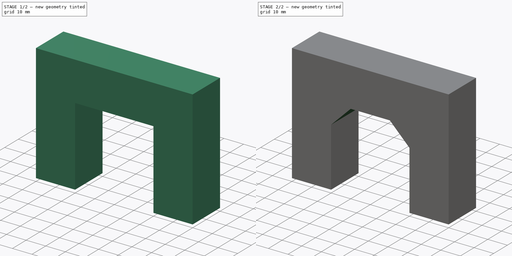
[diagram: build sequence overview — one tinted view per stage of 2, left to right]
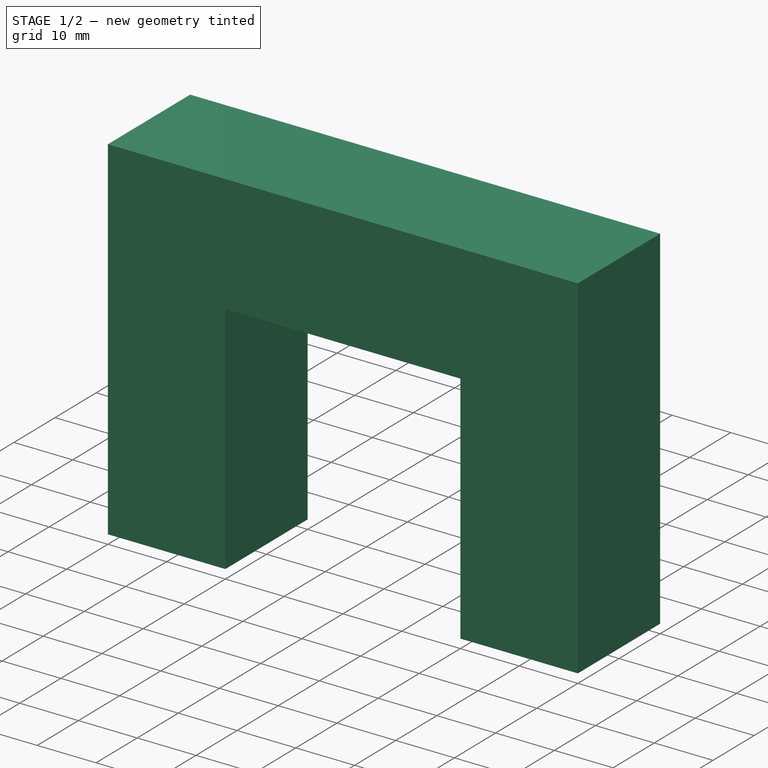
[diagram: stage 1 of 2 — iso view after this stage's code; geometry added in this stage tinted green]
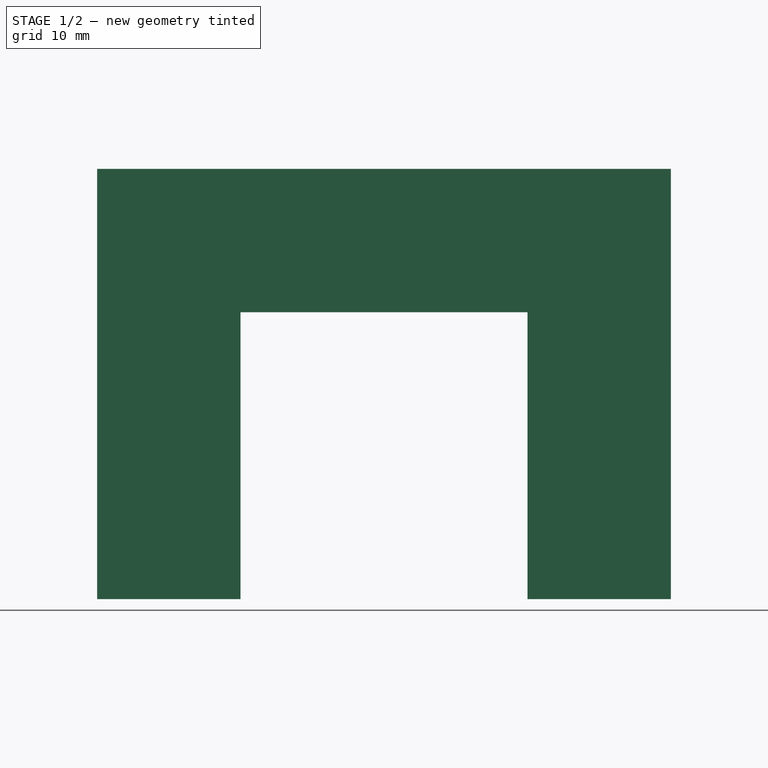
[diagram: stage 1 of 2 — front view after this stage's code; geometry added in this stage tinted green]
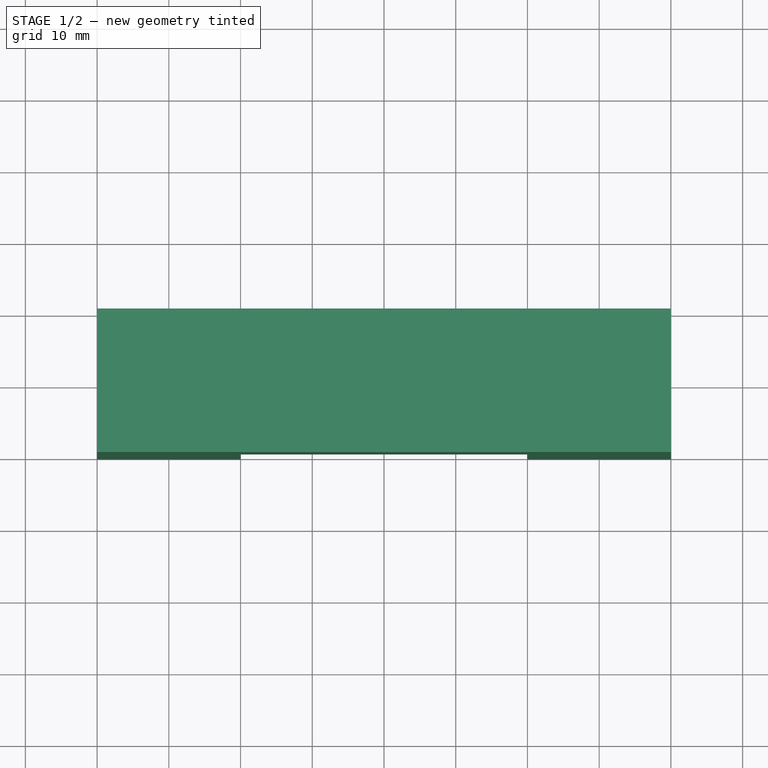
[diagram: stage 1 of 2 — top view after this stage's code; geometry added in this stage tinted green]
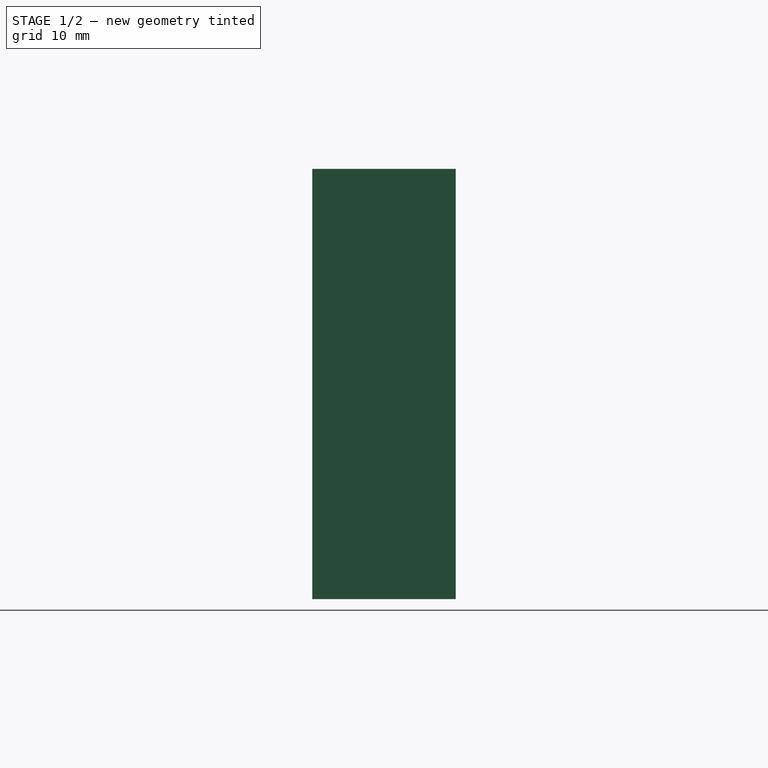
[diagram: stage 1 of 2 — right view after this stage's code; geometry added in this stage tinted green]
FCSTD DOCUMENT  (FreeCAD 0.17R10760 (Git))
Label: bridge_with_chamfers
License: All rights reserved
LicenseURL: http://en.wikipedia.org/wiki/All_rights_reserved
objects: Sketcher::SketchObject×1, PartDesign::Pad×1, PartDesign::Chamfer×1, PartDesign::Body×1, TechDraw::DrawSVGTemplate×1, TechDraw::DrawViewPart×1, TechDraw::DrawProjGroupItem×1, TechDraw::DrawProjGroup×1, TechDraw::DrawPage×1
note: 5 computed .brp shape members not serialized (recipe doc carries the construction recipe); baked Part::Feature solids carry a one-line shape summary decoded from their .brp

FEATURE [Sketcher::SketchObject] Sketch
  MapMode = 5
  Placement = pos=(0,0,0) rot=(1,0,0;1.5708rad)
  Support = -> [XZ_Plane]
  sketch-geometry (8):
    g0: LineSegment StartX=-40 StartY=0 StartZ=0 EndX=-20 EndY=0 EndZ=0
    g1: LineSegment StartX=-20 StartY=0 StartZ=0 EndX=-20 EndY=40 EndZ=0
    g2: LineSegment StartX=-20 StartY=40 StartZ=0 EndX=20 EndY=40 EndZ=0
    g3: LineSegment StartX=20 StartY=40 StartZ=0 EndX=20 EndY=0 EndZ=0
    g4: LineSegment StartX=20 StartY=0 StartZ=0 EndX=40 EndY=0 EndZ=0
    g5: LineSegment StartX=40 StartY=0 StartZ=0 EndX=40 EndY=60 EndZ=0
    g6: LineSegment StartX=40 StartY=60 StartZ=0 EndX=-40 EndY=60 EndZ=0
    g7: LineSegment StartX=-40 StartY=60 StartZ=0 EndX=-40 EndY=0 EndZ=0
  constraints (23):
    c: Horizontal(g0)
    c: Coincident(g0,g1)
    c: Vertical(g1)
    c: Coincident(g1,g2)
    c: Horizontal(g2)
    c: Coincident(g2,g3)
    c: Vertical(g3)
    c: Coincident(g3,g4)
    c: Horizontal(g4)
    c: Coincident(g4,g5)
    c: Vertical(g5)
    c: Coincident(g5,g6)
    c: Horizontal(g6)
    c: Coincident(g6,g7)
    c: Coincident(g7,g0)
    c: Vertical(g7)
    c: Equal(g0,g4)
    c: Symmetric(g0,g3,g-1)
    c: PointOnObject(g4,g-1)
    c: DistanceX(g0,g0) = 20
    c: DistanceX(g2,g2) = 40
    c: DistanceY(g2,g5) = 20
    c: DistanceY(g3,g2) = 40
FEATURE [PartDesign::Pad] Pad
  Length = 20
  Length2 = 100
  Midplane = true
  Placement = pos=(0,0,0) rot=(1,0,0;1.5708rad)
  Profile = -> Sketch
  Type = 0
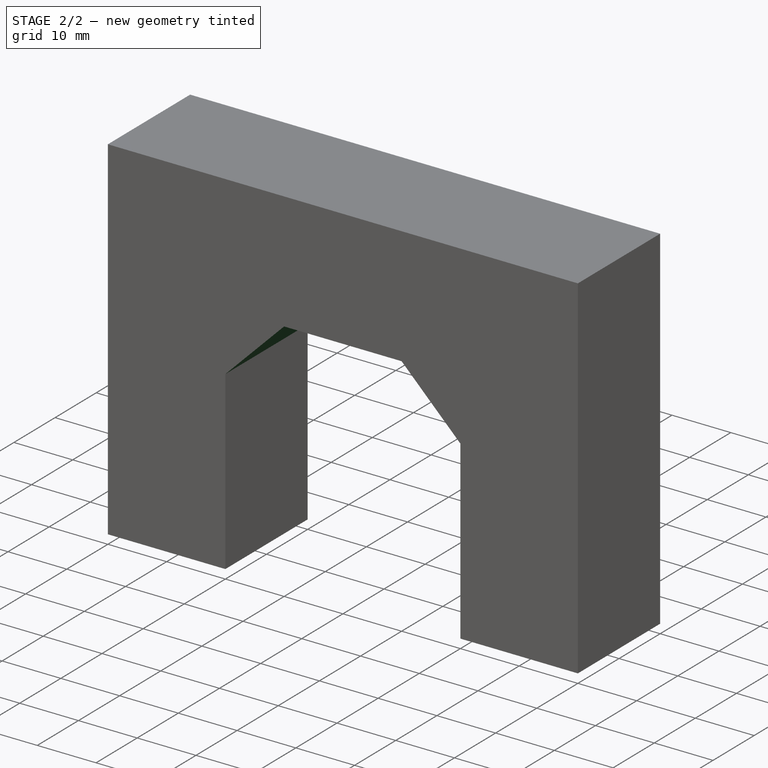
[diagram: stage 2 of 2 — iso view after this stage's code; geometry added in this stage tinted green]
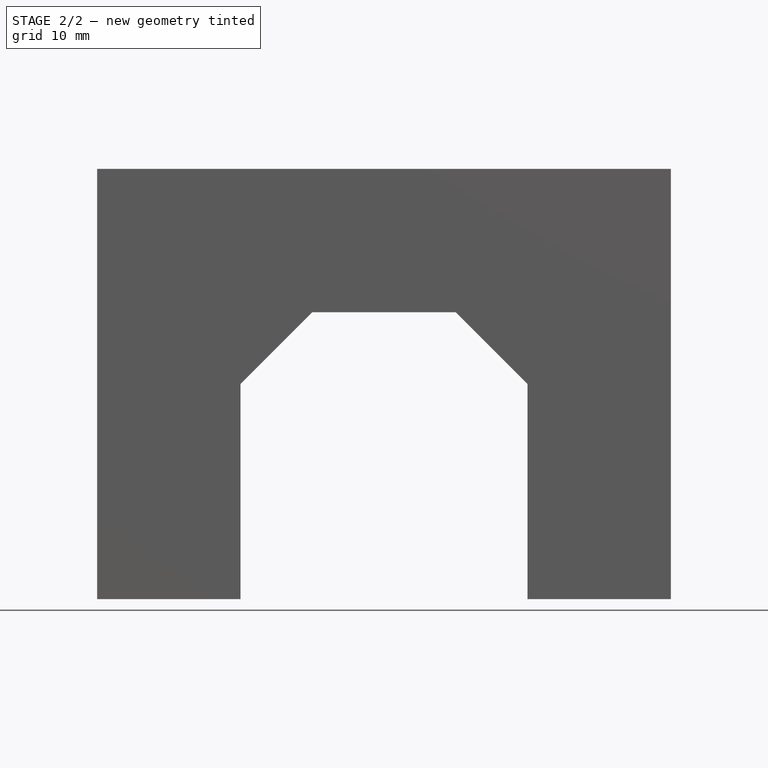
[diagram: stage 2 of 2 — front view after this stage's code; geometry added in this stage tinted green]
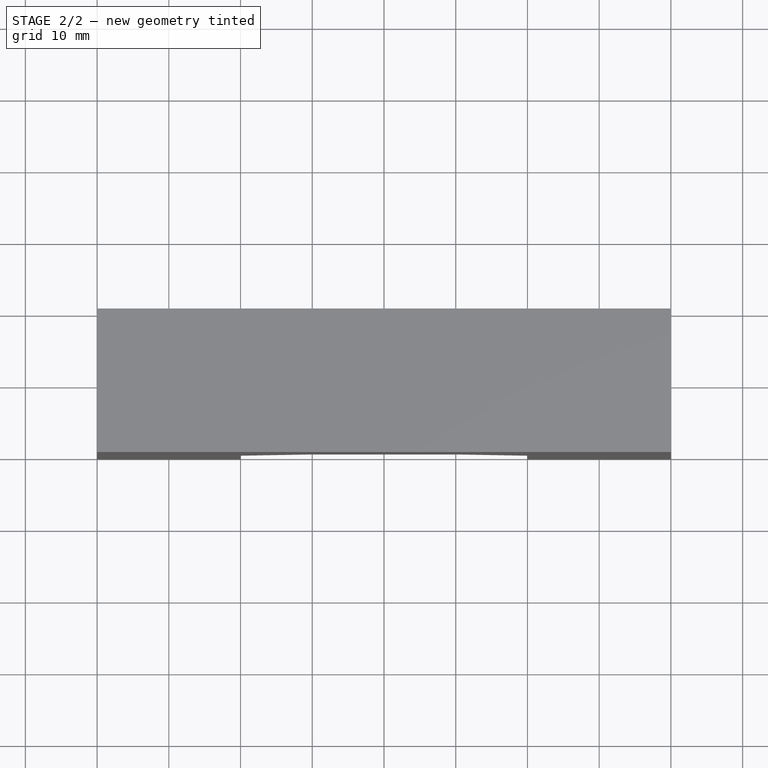
[diagram: stage 2 of 2 — top view after this stage's code; geometry added in this stage tinted green]
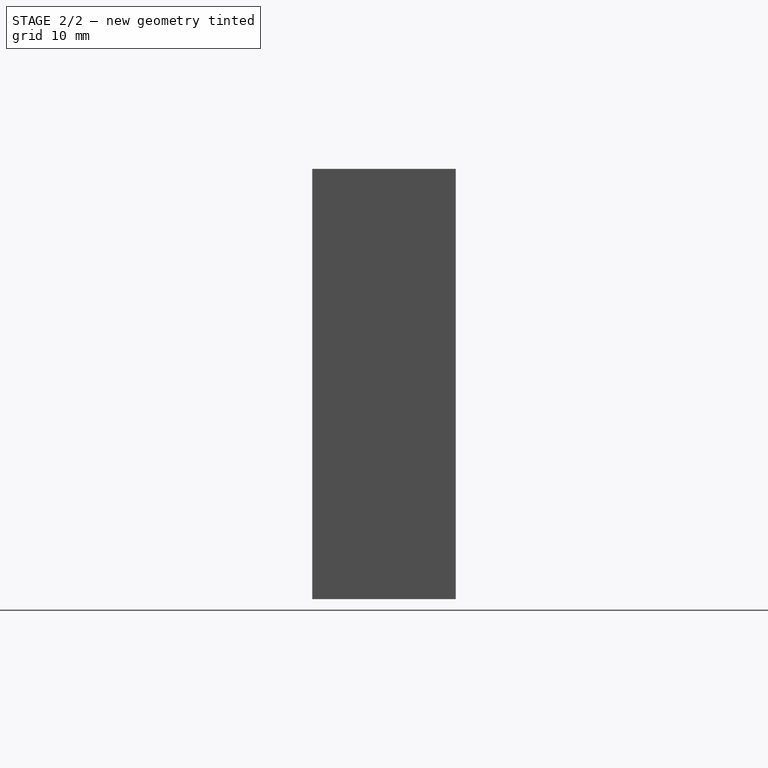
[diagram: stage 2 of 2 — right view after this stage's code; geometry added in this stage tinted green]
FEATURE [PartDesign::Chamfer] Chamfer
  Base = -> Pad [Edge5,Edge8]
  BaseFeature = -> Pad
  Placement = pos=(0,0,0) rot=(1,0,0;1.5708rad)
  Size = 10
FEATURE [PartDesign::Body] Body
  Group = -> [Sketch,Pad,Chamfer]
  Origin = -> BodyOrigin
  Tip = -> Chamfer
FEATURE [TechDraw::DrawSVGTemplate] Template
  EditableTexts = Designed_by_Name=Designed by Name; Drawing_number=Drawing number; FC-Date=Date; FC-SC=Scale; FC-SH=Sheet; FC-Title=Title; Subtitle=Subtitle; Weight=Weight
  Height = 210
  Orientation = 1
  Width = 297
FEATURE [TechDraw::DrawViewPart] View
  ArcCenterMarks = true
  CenterScale = 2
  Direction = (1,-1,1)
  HardHidden = false
  HiddenWidth = 0.15
  HorizCenterLine = false
  IsoCount = 0
  IsoHidden = false
  IsoVisible = false
  IsoWidth = 0.3
  KeepLabel = false
  LineWidth = 0.7
  Rotation = 0
  ScaleType = 0
  SeamHidden = false
  SeamVisible = false
  ShowSectionLine = true
  SmoothHidden = false
  SmoothVisible = false
  Source = -> Chamfer
  VertCenterLine = false
  X = 77.4543
  Y = 113.838
FEATURE [TechDraw::DrawProjGroupItem] ProjItem  label="Front"
  ArcCenterMarks = true
  CenterScale = 2
  Direction = (0,-1,0)
  HardHidden = false
  HiddenWidth = 0.15
  HorizCenterLine = false
  IsoCount = 0
  IsoHidden = false
  IsoVisible = false
  IsoWidth = 0.3
  KeepLabel = false
  LineWidth = 0.7
  Rotation = 0
  RotationVector = (1,0,0)
  ScaleType = 0
  SeamHidden = false
  SeamVisible = false
  ShowSectionLine = true
  SmoothHidden = false
  SmoothVisible = false
  Source = -> Chamfer
  Type = 0
  VertCenterLine = false
  X = 0
  Y = 0
FEATURE [TechDraw::DrawProjGroup] ProjGroup
  Anchor = -> ProjItem
  AutoDistribute = true
  KeepLabel = false
  ProjectionType = 0
  Rotation = 0
  ScaleType = 0
  Source = -> Chamfer
  Views = -> [ProjItem]
  X = 202.889
  Y = 116.218
  spacingX = 15
  spacingY = 15
FEATURE [TechDraw::DrawPage] Page
  ProjectionType = 0
  Template = -> Template
  Views = -> [View,ProjGroup]
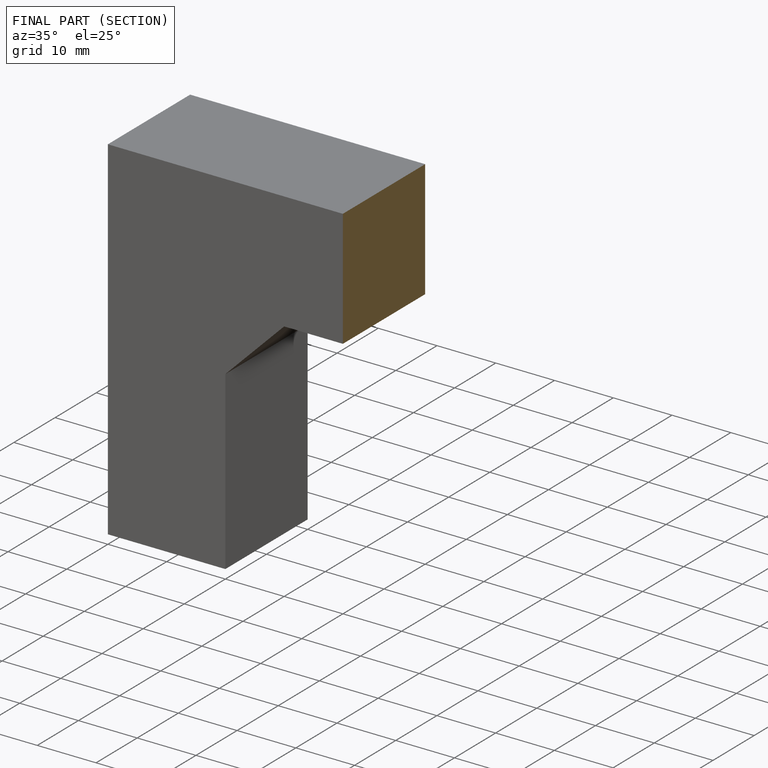
[diagram: finished part — half-section view (interior)]
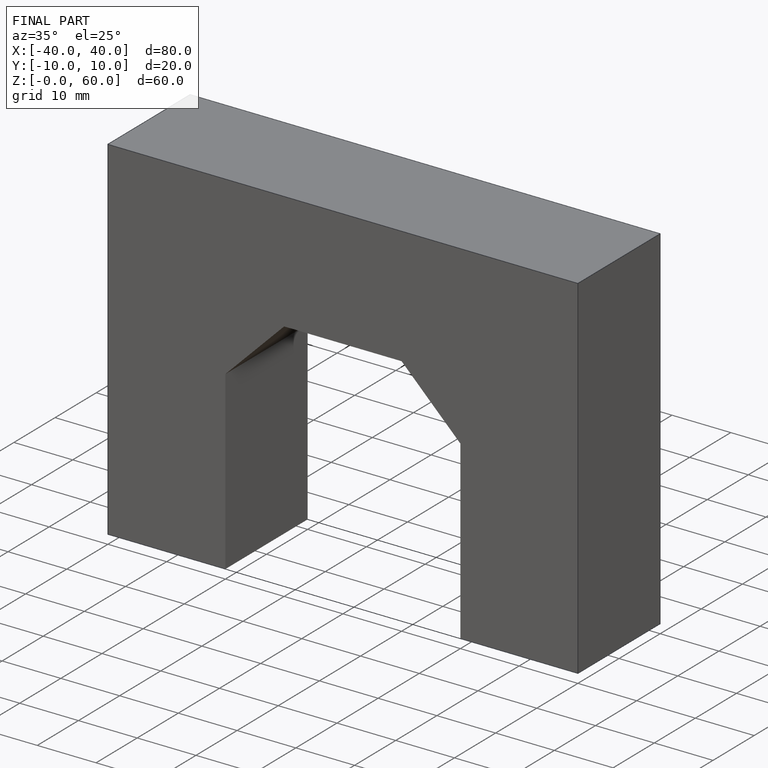
[diagram: finished part — iso view with bounding-box wireframe]
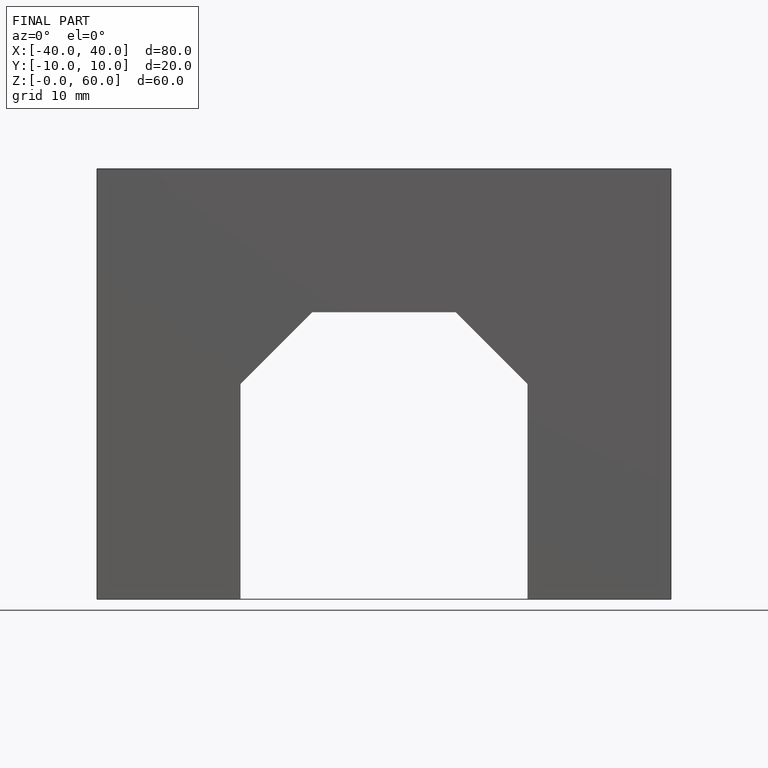
[diagram: finished part — front view with bounding-box wireframe]
